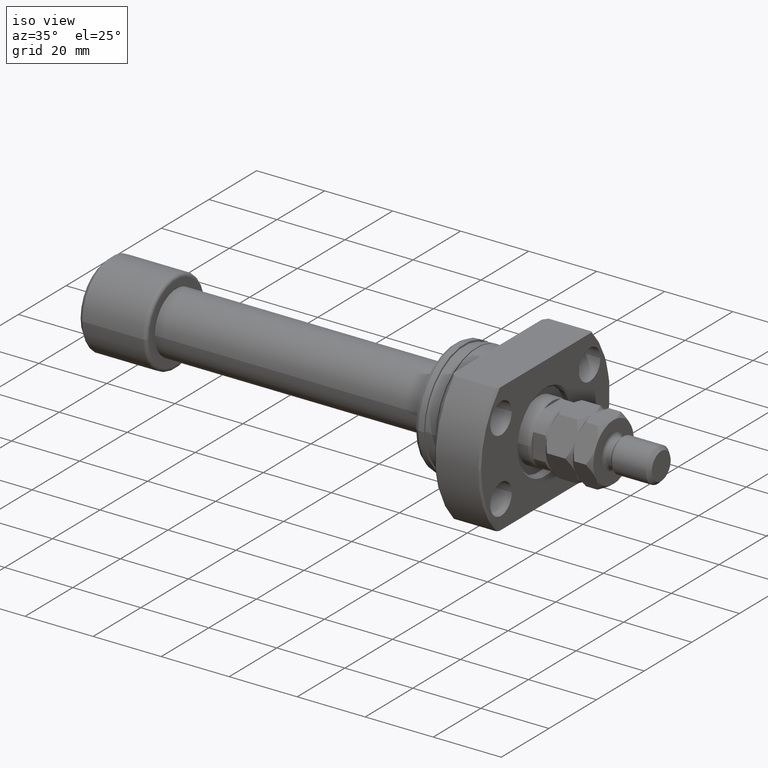
[diagram: clean part render]
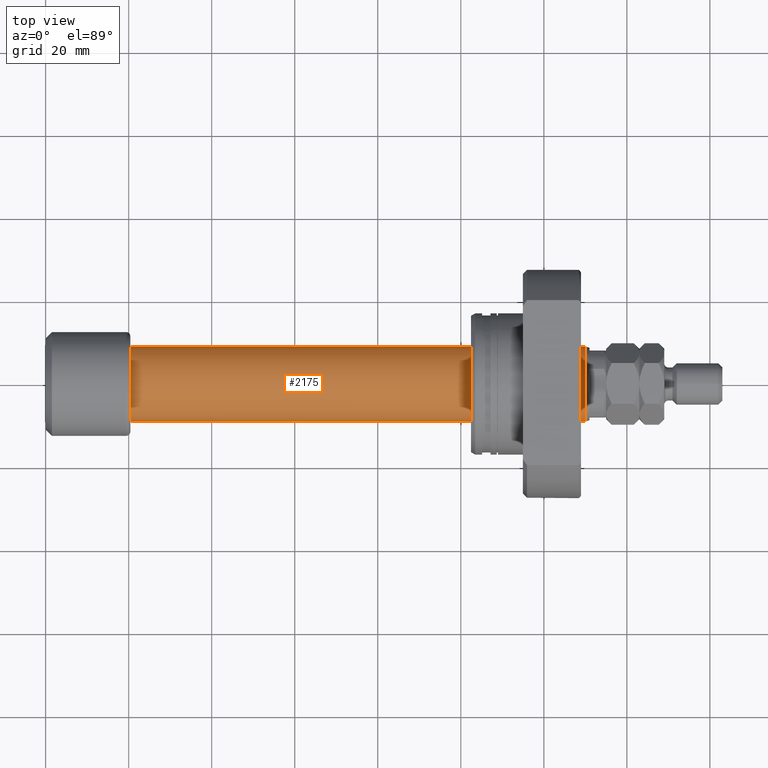
[diagram: tour spotlight — one face highlighted and labeled with its STEP entity id]
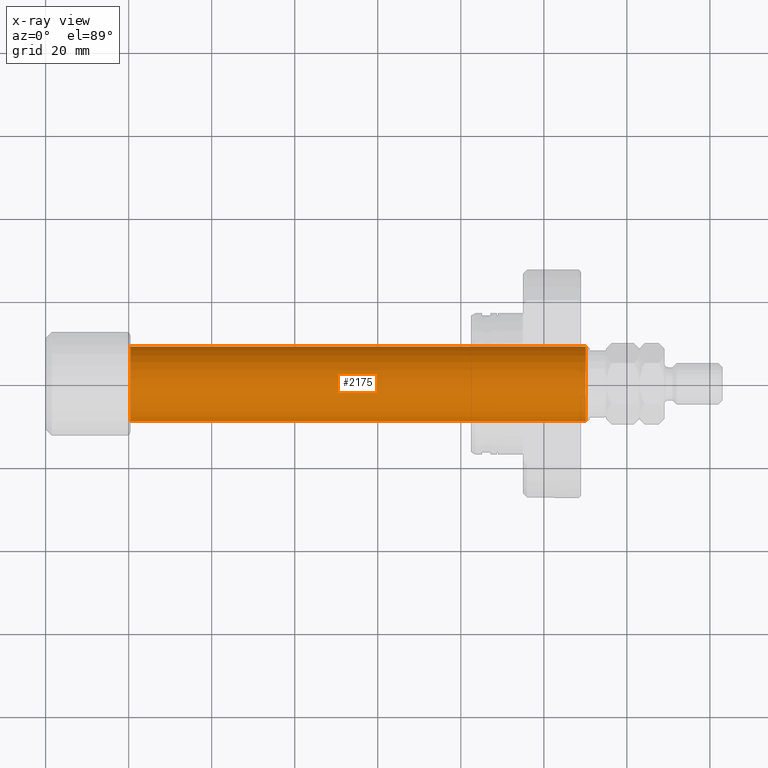
[diagram: x-ray of the same camera — body ghosted, this tour face saturated]
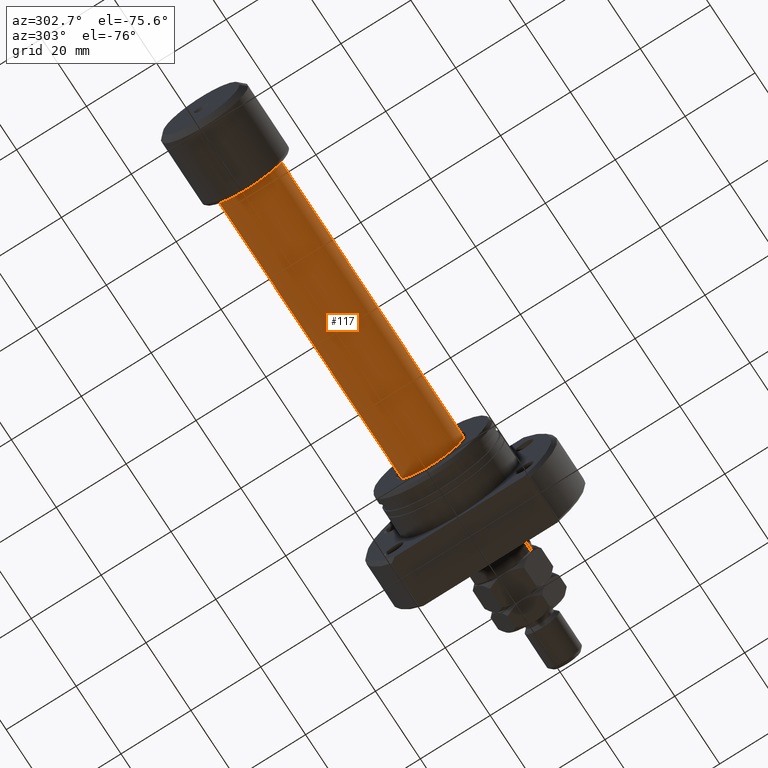
[diagram: tour spotlight — one face highlighted and labeled with its STEP entity id]
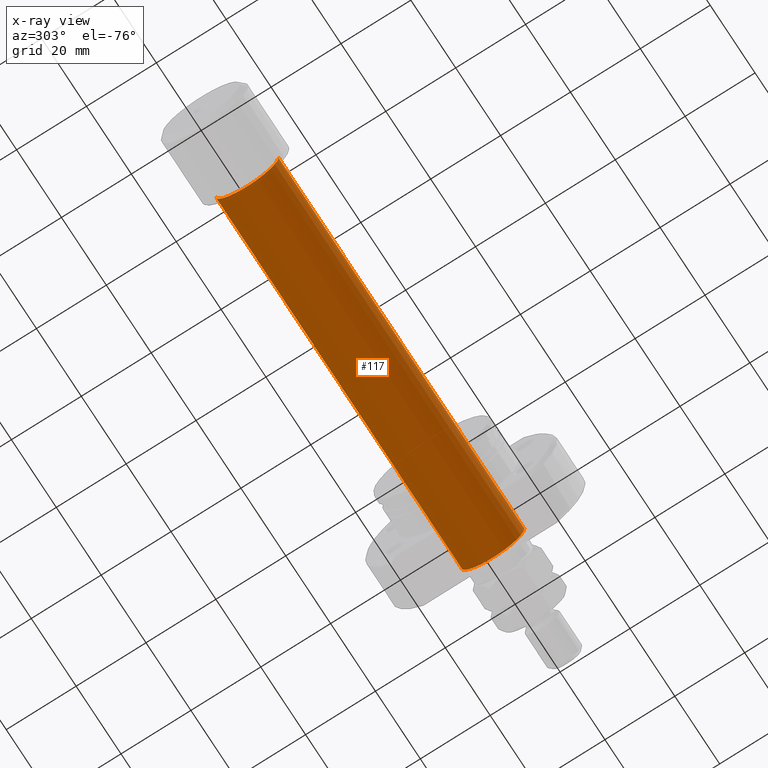
[diagram: x-ray of the same camera — body ghosted, this tour face saturated]
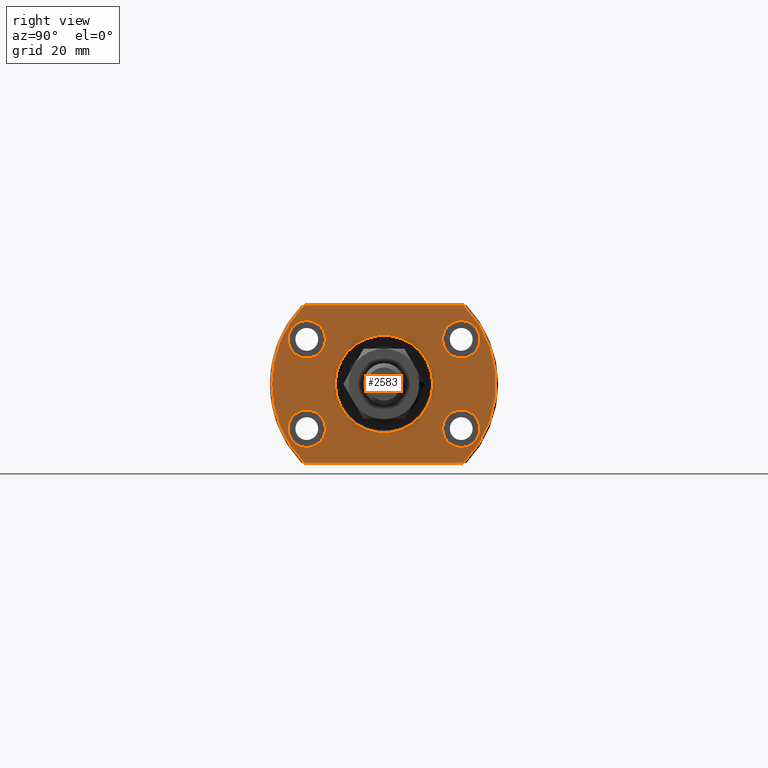
[diagram: tour spotlight — one face highlighted and labeled with its STEP entity id]
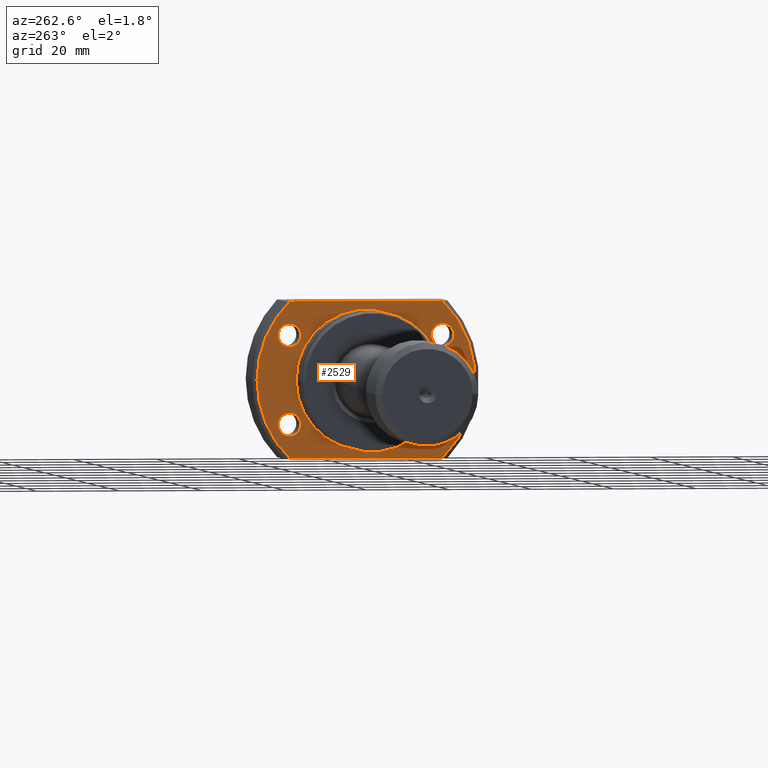
[diagram: tour spotlight — one face highlighted and labeled with its STEP entity id]
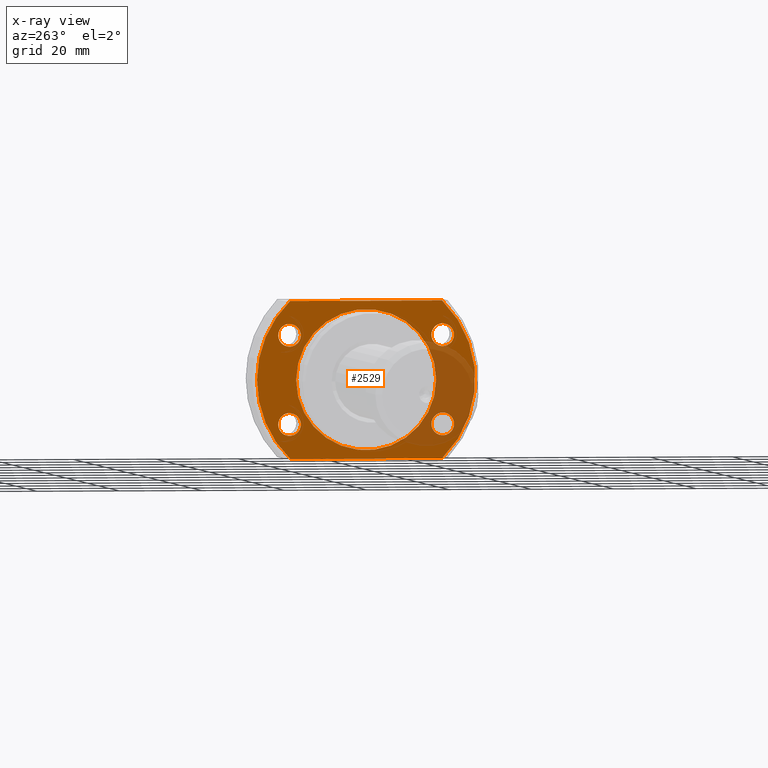
[diagram: x-ray of the same camera — body ghosted, this tour face saturated]
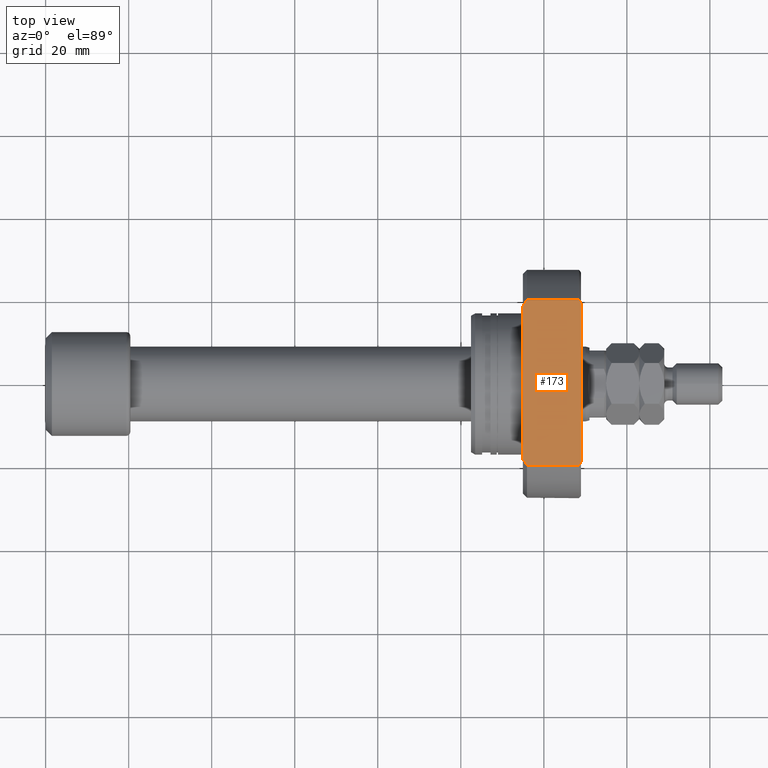
[diagram: tour spotlight — one face highlighted and labeled with its STEP entity id]
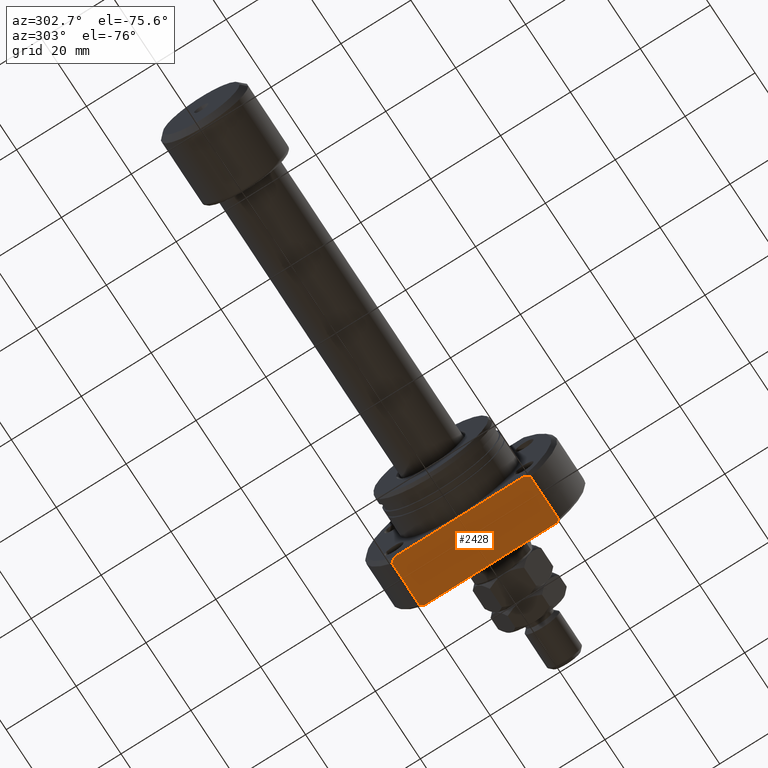
[diagram: tour spotlight — one face highlighted and labeled with its STEP entity id]
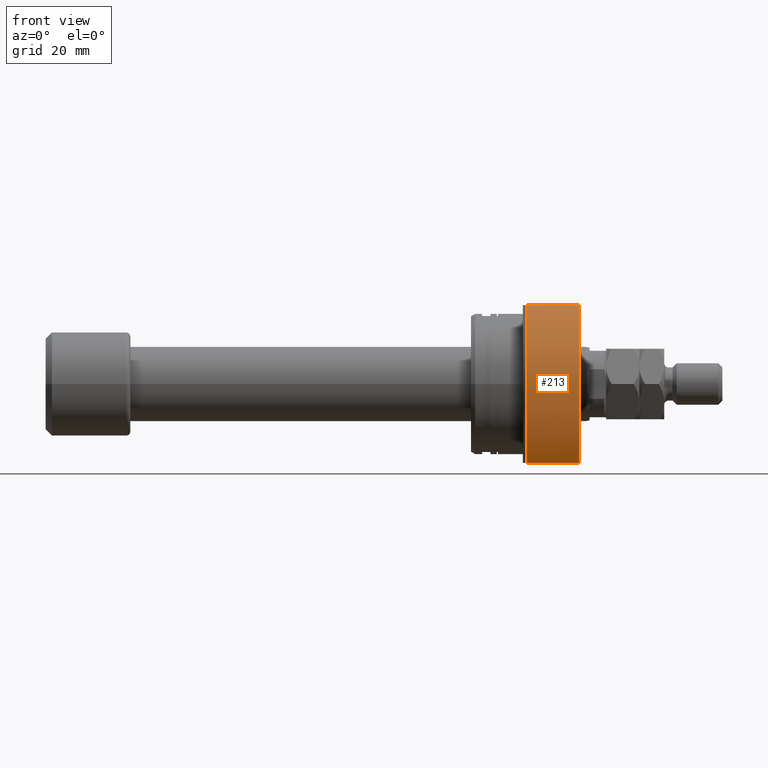
[diagram: tour spotlight — one face highlighted and labeled with its STEP entity id]
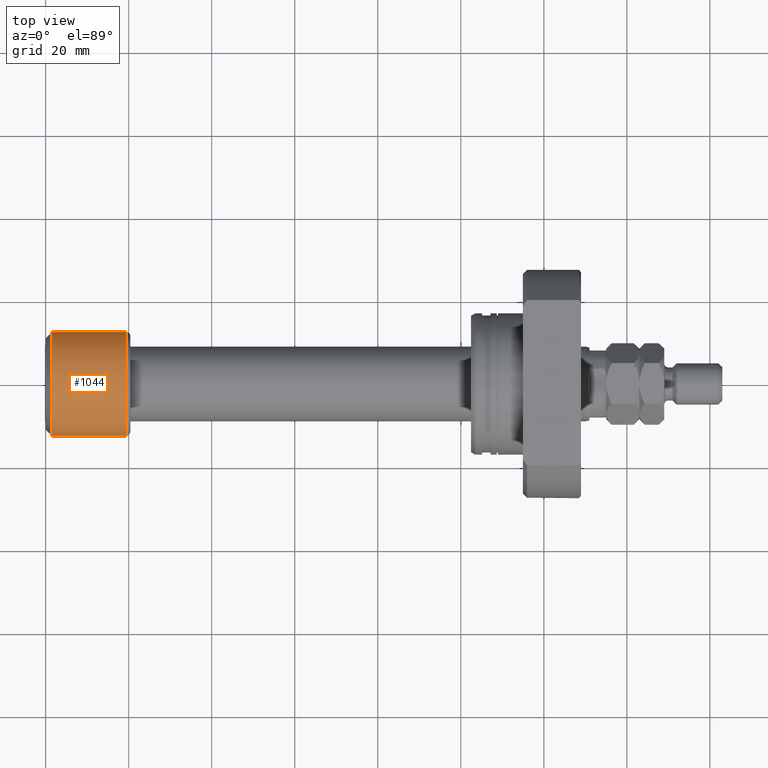
[diagram: tour spotlight — one face highlighted and labeled with its STEP entity id]
A machine part: a face-by-face anatomy tour. The part has 152 B-rep faces; the first image is the clean iso view, then the 8 largest visible faces are spotlighted one at a time (largest first), each with its STEP entity span.

Face 1 — top view, entity #2175. An x-ray twin of the same camera follows (body ghosted, this face saturated) — the face is partly hidden behind the body. In plain terms, the highlighted cylindrical surface (partial cylindrical patch) has radius 9 mm, axis along (-1, -0, -0).
Definition (entity closure, byte-faithful):
#645 = EDGE_CURVE ( 'NONE', #3426, #4650, #1512, .T. ) ;
#677 = CARTESIAN_POINT ( 'NONE',  ( 9.625880898621698056E-17, -9.000000000000097700, 0.000000000000000000 ) ) ;
#731 = DIRECTION ( 'NONE',  ( -1.000000000000000000, -1.069542322069065801E-17, -0.000000000000000000 ) ) ;
#808 = AXIS2_PLACEMENT_3D ( 'NONE', #2009, #1643, #1765 ) ;
#870 = DIRECTION ( 'NONE',  ( -1.000000000000000000, -1.069542322069065801E-17, -0.000000000000000000 ) ) ;
#1193 = CARTESIAN_POINT ( 'NONE',  ( 20.39999999999999503, 9.000000000000000000, 1.102182119232623630E-15 ) ) ;
#1317 = CYLINDRICAL_SURFACE ( 'NONE', #808, 9.000000000000097700 ) ;
#1337 = EDGE_CURVE ( 'NONE', #4231, #1478, #2633, .T. ) ;
#1478 = VERTEX_POINT ( 'NONE', #1193 ) ;
#1512 = LINE ( 'NONE', #677, #3959 ) ;
#1643 = DIRECTION ( 'NONE',  ( -1.000000000000000000, -1.069542322069065801E-17, -0.000000000000000000 ) ) ;
#1667 = CARTESIAN_POINT ( 'NONE',  ( 130.0667575123237611, -9.000000000000193623, 0.000000000000000000 ) ) ;
#1765 = DIRECTION ( 'NONE',  ( 1.069542322069065955E-17, -1.000000000000000000, 0.000000000000000000 ) ) ;
#1778 = DIRECTION ( 'NONE',  ( 0.000000000000000000, -1.000000000000000000, 0.000000000000000000 ) ) ;
#1839 = CIRCLE ( 'NONE', #2765, 9.000000000000000000 ) ;
#2001 = CARTESIAN_POINT ( 'NONE',  ( 130.0667575123237611, 9.000000000000195399, 1.102182119232641774E-15 ) ) ;
#2009 = CARTESIAN_POINT ( 'NONE',  ( 0.000000000000000000, 0.000000000000000000, 0.000000000000000000 ) ) ;
#2149 = CIRCLE ( 'NONE', #2309, 9.000000000000195399 ) ;
#2175 = ADVANCED_FACE ( 'NONE', ( #3825 ), #1317, .T. ) ;
#2263 = ORIENTED_EDGE ( 'NONE', *, *, #3060, .T. ) ;
#2287 = VECTOR ( 'NONE', #2584, 1000.000000000000000 ) ;
#2309 = AXIS2_PLACEMENT_3D ( 'NONE', #3595, #731, #1778 ) ;
#2584 = DIRECTION ( 'NONE',  ( -1.000000000000000000, -1.069542322069065801E-17, -0.000000000000000000 ) ) ;
#2633 = LINE ( 'NONE', #3696, #2287 ) ;
#2765 = AXIS2_PLACEMENT_3D ( 'NONE', #4272, #870, #2810 ) ;
#2810 = DIRECTION ( 'NONE',  ( 0.000000000000000000, -1.000000000000000000, 0.000000000000000000 ) ) ;
#3060 = EDGE_CURVE ( 'NONE', #3426, #4231, #2149, .T. ) ;
#3267 = DIRECTION ( 'NONE',  ( -1.000000000000000000, -1.069542322069065801E-17, -0.000000000000000000 ) ) ;
#3417 = ORIENTED_EDGE ( 'NONE', *, *, #645, .F. ) ;
#3426 = VERTEX_POINT ( 'NONE', #1667 ) ;
#3512 = EDGE_LOOP ( 'NONE', ( #2263, #3747, #4020, #3417 ) ) ;
#3565 = CARTESIAN_POINT ( 'NONE',  ( 20.39999999999999503, -9.000000000000000000, 0.000000000000000000 ) ) ;
#3595 = CARTESIAN_POINT ( 'NONE',  ( 130.0667575123237611, 1.391119018537248741E-15, 0.000000000000000000 ) ) ;
#3696 = CARTESIAN_POINT ( 'NONE',  ( -9.625880898621698056E-17, 9.000000000000097700, 1.102182119232629941E-15 ) ) ;
#3747 = ORIENTED_EDGE ( 'NONE', *, *, #1337, .T. ) ;
#3825 = FACE_OUTER_BOUND ( 'NONE', #3512, .T. ) ;
#3904 = EDGE_CURVE ( 'NONE', #4650, #1478, #1839, .T. ) ;
#3959 = VECTOR ( 'NONE', #3267, 1000.000000000000000 ) ;
#4020 = ORIENTED_EDGE ( 'NONE', *, *, #3904, .F. ) ;
#4231 = VERTEX_POINT ( 'NONE', #2001 ) ;
#4272 = CARTESIAN_POINT ( 'NONE',  ( 20.39999999999999503, 2.181866337020893623E-16, 0.000000000000000000 ) ) ;
#4650 = VERTEX_POINT ( 'NONE', #3565 ) ;

Face 2 — auxiliary view, entity #117. An x-ray twin of the same camera follows (body ghosted, this face saturated) — the face is partly hidden behind the body. In plain terms, the highlighted cylindrical surface (partial cylindrical patch) has radius 9 mm, axis along (-1, -0, -0).
Definition (entity closure, byte-faithful):
#43 = EDGE_LOOP ( 'NONE', ( #4536, #2196, #1491, #1410 ) ) ;
#110 = DIRECTION ( 'NONE',  ( -1.000000000000000000, -1.069542322069065801E-17, -0.000000000000000000 ) ) ;
#117 = ADVANCED_FACE ( 'NONE', ( #3792 ), #475, .T. ) ;
#410 = DIRECTION ( 'NONE',  ( -1.000000000000000000, -1.069542322069065801E-17, -0.000000000000000000 ) ) ;
#417 = CIRCLE ( 'NONE', #880, 9.000000000000000000 ) ;
#475 = CYLINDRICAL_SURFACE ( 'NONE', #947, 9.000000000000097700 ) ;
#508 = DIRECTION ( 'NONE',  ( 0.000000000000000000, -1.000000000000000000, 0.000000000000000000 ) ) ;
#645 = EDGE_CURVE ( 'NONE', #3426, #4650, #1512, .T. ) ;
#677 = CARTESIAN_POINT ( 'NONE',  ( 9.625880898621698056E-17, -9.000000000000097700, 0.000000000000000000 ) ) ;
#880 = AXIS2_PLACEMENT_3D ( 'NONE', #3735, #410, #508 ) ;
#909 = DIRECTION ( 'NONE',  ( -1.000000000000000000, -1.069542322069065801E-17, -0.000000000000000000 ) ) ;
#947 = AXIS2_PLACEMENT_3D ( 'NONE', #1966, #110, #1606 ) ;
#1193 = CARTESIAN_POINT ( 'NONE',  ( 20.39999999999999503, 9.000000000000000000, 1.102182119232623630E-15 ) ) ;
#1337 = EDGE_CURVE ( 'NONE', #4231, #1478, #2633, .T. ) ;
#1410 = ORIENTED_EDGE ( 'NONE', *, *, #1532, .F. ) ;
#1478 = VERTEX_POINT ( 'NONE', #1193 ) ;
#1491 = ORIENTED_EDGE ( 'NONE', *, *, #645, .T. ) ;
#1512 = LINE ( 'NONE', #677, #3959 ) ;
#1532 = EDGE_CURVE ( 'NONE', #1478, #4650, #417, .T. ) ;
#1606 = DIRECTION ( 'NONE',  ( 1.069542322069065955E-17, -1.000000000000000000, 0.000000000000000000 ) ) ;
#1667 = CARTESIAN_POINT ( 'NONE',  ( 130.0667575123237611, -9.000000000000193623, 0.000000000000000000 ) ) ;
#1703 = CARTESIAN_POINT ( 'NONE',  ( 130.0667575123237611, 1.391119018537248741E-15, 0.000000000000000000 ) ) ;
#1966 = CARTESIAN_POINT ( 'NONE',  ( 0.000000000000000000, 0.000000000000000000, 0.000000000000000000 ) ) ;
#2001 = CARTESIAN_POINT ( 'NONE',  ( 130.0667575123237611, 9.000000000000195399, 1.102182119232641774E-15 ) ) ;
#2196 = ORIENTED_EDGE ( 'NONE', *, *, #2880, .T. ) ;
#2287 = VECTOR ( 'NONE', #2584, 1000.000000000000000 ) ;
#2584 = DIRECTION ( 'NONE',  ( -1.000000000000000000, -1.069542322069065801E-17, -0.000000000000000000 ) ) ;
#2633 = LINE ( 'NONE', #3696, #2287 ) ;
#2880 = EDGE_CURVE ( 'NONE', #4231, #3426, #3523, .T. ) ;
#3267 = DIRECTION ( 'NONE',  ( -1.000000000000000000, -1.069542322069065801E-17, -0.000000000000000000 ) ) ;
#3426 = VERTEX_POINT ( 'NONE', #1667 ) ;
#3523 = CIRCLE ( 'NONE', #4203, 9.000000000000195399 ) ;
#3565 = CARTESIAN_POINT ( 'NONE',  ( 20.39999999999999503, -9.000000000000000000, 0.000000000000000000 ) ) ;
#3696 = CARTESIAN_POINT ( 'NONE',  ( -9.625880898621698056E-17, 9.000000000000097700, 1.102182119232629941E-15 ) ) ;
#3735 = CARTESIAN_POINT ( 'NONE',  ( 20.39999999999999503, 2.181866337020893623E-16, 0.000000000000000000 ) ) ;
#3792 = FACE_OUTER_BOUND ( 'NONE', #43, .T. ) ;
#3949 = DIRECTION ( 'NONE',  ( 0.000000000000000000, -1.000000000000000000, 0.000000000000000000 ) ) ;
#3959 = VECTOR ( 'NONE', #3267, 1000.000000000000000 ) ;
#4203 = AXIS2_PLACEMENT_3D ( 'NONE', #1703, #909, #3949 ) ;
#4231 = VERTEX_POINT ( 'NONE', #2001 ) ;
#4536 = ORIENTED_EDGE ( 'NONE', *, *, #1337, .F. ) ;
#4650 = VERTEX_POINT ( 'NONE', #3565 ) ;

Face 3 — right view, entity #2583. In plain terms, the highlighted planar face has unit normal (-1, -0, 0).
Definition (entity closure, byte-faithful):
#34 = AXIS2_PLACEMENT_3D ( 'NONE', #1515, #2974, #2266 ) ;
#38 = AXIS2_PLACEMENT_3D ( 'NONE', #2548, #3319, #2188 ) ;
#78 = VERTEX_POINT ( 'NONE', #1631 ) ;
#103 = VERTEX_POINT ( 'NONE', #2283 ) ;
#125 = EDGE_CURVE ( 'NONE', #1320, #1777, #3424, .T. ) ;
#126 = CIRCLE ( 'NONE', #2000, 4.500000000000000888 ) ;
#212 = DIRECTION ( 'NONE',  ( -1.000000000000000000, -9.242617352055502386E-18, 0.000000000000000000 ) ) ;
#266 = CIRCLE ( 'NONE', #38, 4.500000000000000888 ) ;
#353 = AXIS2_PLACEMENT_3D ( 'NONE', #4323, #212, #1308 ) ;
#360 = CARTESIAN_POINT ( 'NONE',  ( 26.49999999999933564, -23.10000000000076881, -10.75000000000000000 ) ) ;
#379 = EDGE_CURVE ( 'NONE', #622, #858, #4346, .T. ) ;
#414 = EDGE_LOOP ( 'NONE', ( #2303, #4556 ) ) ;
#428 = CARTESIAN_POINT ( 'NONE',  ( 26.50000000000000355, -11.75000000000071054, 1.438959988998140752E-15 ) ) ;
#523 = CARTESIAN_POINT ( 'NONE',  ( 26.50000000000000355, 2.449293598294708386E-16, 0.000000000000000000 ) ) ;
#622 = VERTEX_POINT ( 'NONE', #360 ) ;
#661 = ORIENTED_EDGE ( 'NONE', *, *, #1555, .F. ) ;
#669 = DIRECTION ( 'NONE',  ( 1.000000000000000000, -2.886466111666351885E-14, 0.000000000000000000 ) ) ;
#672 = FACE_BOUND ( 'NONE', #1497, .T. ) ;
#709 = CARTESIAN_POINT ( 'NONE',  ( 26.50000000000000355, 2.449293598294708386E-16, 0.000000000000000000 ) ) ;
#720 = VECTOR ( 'NONE', #3818, 1000.000000000000000 ) ;
#737 = AXIS2_PLACEMENT_3D ( 'NONE', #709, #4365, #1895 ) ;
#764 = DIRECTION ( 'NONE',  ( 1.000000000000000000, -2.883293662278287419E-14, -3.155443620884046521E-30 ) ) ;
#779 = DIRECTION ( 'NONE',  ( 2.852656382717415620E-14, 1.000000000000000000, 0.000000000000000000 ) ) ;
#782 = DIRECTION ( 'NONE',  ( 0.000000000000000000, -1.000000000000000000, 0.000000000000000000 ) ) ;
#820 = CIRCLE ( 'NONE', #898, 4.500000000000000888 ) ;
#858 = VERTEX_POINT ( 'NONE', #4721 ) ;
#895 = CARTESIAN_POINT ( 'NONE',  ( 26.50000000000000355, 19.18332609325086580, -19.00000000000001066 ) ) ;
#898 = AXIS2_PLACEMENT_3D ( 'NONE', #1401, #4409, #4355 ) ;
#981 = DIRECTION ( 'NONE',  ( 0.000000000000000000, 1.000000000000000000, 0.000000000000000000 ) ) ;
#1045 = CIRCLE ( 'NONE', #34, 27.00000000000000000 ) ;
#1055 = CARTESIAN_POINT ( 'NONE',  ( 26.50000000000054001, 18.59999999999923403, 10.75000000000000000 ) ) ;
#1129 = CIRCLE ( 'NONE', #4289, 11.74999999999932498 ) ;
#1187 = DIRECTION ( 'NONE',  ( 2.852656382717415620E-14, 1.000000000000000000, 0.000000000000000000 ) ) ;
#1224 = ORIENTED_EDGE ( 'NONE', *, *, #2499, .T. ) ;
#1308 = DIRECTION ( 'NONE',  ( 0.000000000000000000, -1.000000000000000000, 0.000000000000000000 ) ) ;
#1320 = VERTEX_POINT ( 'NONE', #2216 ) ;
#1329 = ORIENTED_EDGE ( 'NONE', *, *, #4408, .T. ) ;
#1370 = CIRCLE ( 'NONE', #737, 27.00000000000000000 ) ;
#1390 = DIRECTION ( 'NONE',  ( 2.852656382717415620E-14, 1.000000000000000000, 0.000000000000000000 ) ) ;
#1401 = CARTESIAN_POINT ( 'NONE',  ( 26.49999999999946354, -18.60000000000076881, 10.75000000000000000 ) ) ;
#1416 = FACE_BOUND ( 'NONE', #2578, .T. ) ;
#1465 = FACE_BOUND ( 'NONE', #4331, .T. ) ;
#1485 = EDGE_LOOP ( 'NONE', ( #661, #3393, #4290, #2180, #1329 ) ) ;
#1497 = EDGE_LOOP ( 'NONE', ( #3835, #1224 ) ) ;
#1500 = CARTESIAN_POINT ( 'NONE',  ( 26.49999999999946354, -18.60000000000076881, -10.75000000000000000 ) ) ;
#1515 = CARTESIAN_POINT ( 'NONE',  ( 26.50000000000000355, 2.449293598294708386E-16, 0.000000000000000000 ) ) ;
#1523 = CARTESIAN_POINT ( 'NONE',  ( 26.50000000000000355, 19.18332609325086935, 19.00000000000000711 ) ) ;
#1529 = CARTESIAN_POINT ( 'NONE',  ( 26.49999999999946354, -18.60000000000076881, -10.75000000000000000 ) ) ;
#1555 = EDGE_CURVE ( 'NONE', #4595, #3744, #2718, .T. ) ;
#1603 = AXIS2_PLACEMENT_3D ( 'NONE', #3754, #2337, #1187 ) ;
#1631 = CARTESIAN_POINT ( 'NONE',  ( 26.50000000000000355, 11.74999999999861622, 0.000000000000000000 ) ) ;
#1695 = LINE ( 'NONE', #4594, #3610 ) ;
#1723 = EDGE_CURVE ( 'NONE', #2639, #2570, #3432, .T. ) ;
#1777 = VERTEX_POINT ( 'NONE', #2489 ) ;
#1799 = VERTEX_POINT ( 'NONE', #2511 ) ;
#1819 = AXIS2_PLACEMENT_3D ( 'NONE', #2714, #3527, #1390 ) ;
#1838 = DIRECTION ( 'NONE',  ( 2.852656382717415620E-14, 1.000000000000000000, 0.000000000000000000 ) ) ;
#1870 = ORIENTED_EDGE ( 'NONE', *, *, #3493, .F. ) ;
#1895 = DIRECTION ( 'NONE',  ( 0.000000000000000000, 1.000000000000000000, 0.000000000000000000 ) ) ;
#2000 = AXIS2_PLACEMENT_3D ( 'NONE', #1055, #669, #3239 ) ;
#2015 = DIRECTION ( 'NONE',  ( 1.000000000000000000, 9.242617352055502386E-18, -0.000000000000000000 ) ) ;
#2064 = CIRCLE ( 'NONE', #353, 11.74999999999932498 ) ;
#2180 = ORIENTED_EDGE ( 'NONE', *, *, #3425, .T. ) ;
#2188 = DIRECTION ( 'NONE',  ( 2.852656382717415620E-14, 1.000000000000000000, 0.000000000000000000 ) ) ;
#2205 = CARTESIAN_POINT ( 'NONE',  ( 26.50000000000041211, 14.09999999999923403, 10.75000000000000000 ) ) ;
#2216 = CARTESIAN_POINT ( 'NONE',  ( 26.50000000000066791, 23.09999999999923403, -10.75000000000000000 ) ) ;
#2230 = EDGE_CURVE ( 'NONE', #4595, #2639, #1045, .T. ) ;
#2266 = DIRECTION ( 'NONE',  ( 0.000000000000000000, 1.000000000000000000, 0.000000000000000000 ) ) ;
#2277 = DIRECTION ( 'NONE',  ( 1.000000000000000000, -2.883293662278287419E-14, -3.155443620884046521E-30 ) ) ;
#2283 = CARTESIAN_POINT ( 'NONE',  ( 26.49999999999959499, -14.10000000000076881, 10.75000000000000000 ) ) ;
#2303 = ORIENTED_EDGE ( 'NONE', *, *, #3249, .F. ) ;
#2307 = AXIS2_PLACEMENT_3D ( 'NONE', #2620, #764, #4422 ) ;
#2326 = EDGE_CURVE ( 'NONE', #1799, #4357, #3444, .T. ) ;
#2337 = DIRECTION ( 'NONE',  ( 1.000000000000000000, -2.886466111666351885E-14, 0.000000000000000000 ) ) ;
#2360 = CARTESIAN_POINT ( 'NONE',  ( 26.50000000000000355, 19.88089535207168623, 19.00000000000001066 ) ) ;
#2375 = CIRCLE ( 'NONE', #2307, 4.500000000000000888 ) ;
#2489 = CARTESIAN_POINT ( 'NONE',  ( 26.50000000000041211, 14.09999999999923403, -10.75000000000000000 ) ) ;
#2499 = EDGE_CURVE ( 'NONE', #2873, #78, #2064, .T. ) ;
#2511 = CARTESIAN_POINT ( 'NONE',  ( 26.50000000000066791, 23.09999999999923403, 10.75000000000000000 ) ) ;
#2548 = CARTESIAN_POINT ( 'NONE',  ( 26.50000000000054001, 18.59999999999923403, -10.75000000000000000 ) ) ;
#2569 = CARTESIAN_POINT ( 'NONE',  ( 26.50000000000000355, -27.00000000000000355, 0.000000000000000000 ) ) ;
#2570 = VERTEX_POINT ( 'NONE', #4707 ) ;
#2578 = EDGE_LOOP ( 'NONE', ( #4170, #1870 ) ) ;
#2583 = ADVANCED_FACE ( 'NONE', ( #672, #1465, #1416, #3292, #3630, #4030 ), #3725, .F. ) ;
#2589 = EDGE_CURVE ( 'NONE', #1777, #1320, #266, .T. ) ;
#2614 = EDGE_CURVE ( 'NONE', #103, #2830, #2375, .T. ) ;
#2620 = CARTESIAN_POINT ( 'NONE',  ( 26.49999999999946354, -18.60000000000076881, 10.75000000000000000 ) ) ;
#2639 = VERTEX_POINT ( 'NONE', #2569 ) ;
#2654 = CARTESIAN_POINT ( 'NONE',  ( 26.50000000000000355, -19.18332609325086224, 19.00000000000000711 ) ) ;
#2714 = CARTESIAN_POINT ( 'NONE',  ( 26.50000000000054001, 18.59999999999923403, -10.75000000000000000 ) ) ;
#2718 = LINE ( 'NONE', #2360, #720 ) ;
#2830 = VERTEX_POINT ( 'NONE', #3092 ) ;
#2868 = EDGE_CURVE ( 'NONE', #78, #2873, #1129, .T. ) ;
#2873 = VERTEX_POINT ( 'NONE', #428 ) ;
#2932 = CARTESIAN_POINT ( 'NONE',  ( 26.50000000000000355, -27.00000000000000000, 0.000000000000000000 ) ) ;
#2974 = DIRECTION ( 'NONE',  ( 1.000000000000000000, 9.242617352055502386E-18, -0.000000000000000000 ) ) ;
#3092 = CARTESIAN_POINT ( 'NONE',  ( 26.49999999999933564, -23.10000000000076881, 10.75000000000000000 ) ) ;
#3106 = DIRECTION ( 'NONE',  ( -9.242617352055502386E-18, 1.000000000000000000, -0.000000000000000000 ) ) ;
#3109 = EDGE_CURVE ( 'NONE', #4357, #1799, #126, .T. ) ;
#3238 = ORIENTED_EDGE ( 'NONE', *, *, #2589, .F. ) ;
#3239 = DIRECTION ( 'NONE',  ( 2.852656382717415620E-14, 1.000000000000000000, 0.000000000000000000 ) ) ;
#3240 = ORIENTED_EDGE ( 'NONE', *, *, #3109, .F. ) ;
#3249 = EDGE_CURVE ( 'NONE', #858, #622, #3302, .T. ) ;
#3292 = FACE_BOUND ( 'NONE', #414, .T. ) ;
#3302 = CIRCLE ( 'NONE', #3376, 4.500000000000000888 ) ;
#3319 = DIRECTION ( 'NONE',  ( 1.000000000000000000, -2.883293662278287419E-14, -3.155443620884046521E-30 ) ) ;
#3376 = AXIS2_PLACEMENT_3D ( 'NONE', #1529, #2277, #779 ) ;
#3388 = CARTESIAN_POINT ( 'NONE',  ( 26.50000000000000355, -7.069515144664183387E-13, 0.000000000000000000 ) ) ;
#3393 = ORIENTED_EDGE ( 'NONE', *, *, #2230, .T. ) ;
#3424 = CIRCLE ( 'NONE', #1819, 4.500000000000000888 ) ;
#3425 = EDGE_CURVE ( 'NONE', #2570, #3858, #1695, .T. ) ;
#3432 = CIRCLE ( 'NONE', #4122, 27.00000000000000000 ) ;
#3444 = CIRCLE ( 'NONE', #1603, 4.500000000000000888 ) ;
#3493 = EDGE_CURVE ( 'NONE', #2830, #103, #820, .T. ) ;
#3527 = DIRECTION ( 'NONE',  ( 1.000000000000000000, -2.883293662278287419E-14, -3.155443620884046521E-30 ) ) ;
#3594 = EDGE_LOOP ( 'NONE', ( #4217, #3238 ) ) ;
#3610 = VECTOR ( 'NONE', #3106, 1000.000000000000000 ) ;
#3630 = FACE_BOUND ( 'NONE', #3594, .T. ) ;
#3725 = PLANE ( 'NONE',  #4587 ) ;
#3744 = VERTEX_POINT ( 'NONE', #1523 ) ;
#3754 = CARTESIAN_POINT ( 'NONE',  ( 26.50000000000054001, 18.59999999999923403, 10.75000000000000000 ) ) ;
#3818 = DIRECTION ( 'NONE',  ( -0.000000000000000000, 1.000000000000000000, 0.000000000000000000 ) ) ;
#3835 = ORIENTED_EDGE ( 'NONE', *, *, #2868, .T. ) ;
#3842 = ORIENTED_EDGE ( 'NONE', *, *, #2326, .F. ) ;
#3858 = VERTEX_POINT ( 'NONE', #895 ) ;
#4030 = FACE_OUTER_BOUND ( 'NONE', #1485, .T. ) ;
#4097 = DIRECTION ( 'NONE',  ( -1.000000000000000000, -9.242617352055502386E-18, 0.000000000000000000 ) ) ;
#4122 = AXIS2_PLACEMENT_3D ( 'NONE', #523, #2015, #981 ) ;
#4170 = ORIENTED_EDGE ( 'NONE', *, *, #2614, .F. ) ;
#4217 = ORIENTED_EDGE ( 'NONE', *, *, #125, .F. ) ;
#4289 = AXIS2_PLACEMENT_3D ( 'NONE', #3388, #4097, #782 ) ;
#4290 = ORIENTED_EDGE ( 'NONE', *, *, #1723, .T. ) ;
#4323 = CARTESIAN_POINT ( 'NONE',  ( 26.50000000000000355, -7.069515144664183387E-13, 0.000000000000000000 ) ) ;
#4331 = EDGE_LOOP ( 'NONE', ( #3842, #3240 ) ) ;
#4346 = CIRCLE ( 'NONE', #4647, 4.500000000000000888 ) ;
#4355 = DIRECTION ( 'NONE',  ( 2.852656382717415620E-14, 1.000000000000000000, 0.000000000000000000 ) ) ;
#4357 = VERTEX_POINT ( 'NONE', #2205 ) ;
#4365 = DIRECTION ( 'NONE',  ( 1.000000000000000000, 9.242617352055502386E-18, -0.000000000000000000 ) ) ;
#4396 = DIRECTION ( 'NONE',  ( -1.000000000000000000, -9.242617352055502386E-18, 0.000000000000000000 ) ) ;
#4408 = EDGE_CURVE ( 'NONE', #3858, #3744, #1370, .T. ) ;
#4409 = DIRECTION ( 'NONE',  ( 1.000000000000000000, -2.883293662278287419E-14, -3.155443620884046521E-30 ) ) ;
#4422 = DIRECTION ( 'NONE',  ( 2.852656382717415620E-14, 1.000000000000000000, 0.000000000000000000 ) ) ;
#4500 = DIRECTION ( 'NONE',  ( 1.000000000000000000, -2.883293662278287419E-14, -3.155443620884046521E-30 ) ) ;
#4556 = ORIENTED_EDGE ( 'NONE', *, *, #379, .F. ) ;
#4587 = AXIS2_PLACEMENT_3D ( 'NONE', #2932, #4396, #4729 ) ;
#4594 = CARTESIAN_POINT ( 'NONE',  ( 26.50000000000000355, -27.00000000000000000, -19.00000000000001066 ) ) ;
#4595 = VERTEX_POINT ( 'NONE', #2654 ) ;
#4647 = AXIS2_PLACEMENT_3D ( 'NONE', #1500, #4500, #1838 ) ;
#4707 = CARTESIAN_POINT ( 'NONE',  ( 26.50000000000000355, -19.18332609325086580, -19.00000000000001066 ) ) ;
#4721 = CARTESIAN_POINT ( 'NONE',  ( 26.49999999999959499, -14.10000000000076881, -10.75000000000000000 ) ) ;
#4729 = DIRECTION ( 'NONE',  ( 9.242617352055502386E-18, -1.000000000000000000, 0.000000000000000000 ) ) ;

Face 4 — auxiliary view, entity #2529. An x-ray twin of the same camera follows (body ghosted, this face saturated) — the face is partly hidden behind the body. In plain terms, the highlighted planar face has unit normal (1, 0, 0).
Definition (entity closure, byte-faithful):
#32 = CIRCLE ( 'NONE', #1362, 2.749999999999999112 ) ;
#47 = CIRCLE ( 'NONE', #1059, 26.49999999999993250 ) ;
#130 = CARTESIAN_POINT ( 'NONE',  ( 12.50000000000000355, -16.99999999999999645, 19.00000000000001066 ) ) ;
#156 = CARTESIAN_POINT ( 'NONE',  ( 12.50000000000000355, -18.60000000000036380, 10.75000000000000000 ) ) ;
#179 = ORIENTED_EDGE ( 'NONE', *, *, #4730, .T. ) ;
#181 = FACE_OUTER_BOUND ( 'NONE', #1364, .T. ) ;
#232 = CARTESIAN_POINT ( 'NONE',  ( 12.50000000000000355, -16.99999999999999645, 0.000000000000000000 ) ) ;
#275 = CARTESIAN_POINT ( 'NONE',  ( 12.50000000000000355, -18.60000000000036380, -10.75000000000000000 ) ) ;
#364 = CIRCLE ( 'NONE', #2987, 16.99999999999999645 ) ;
#402 = EDGE_LOOP ( 'NONE', ( #179, #1632 ) ) ;
#409 = CIRCLE ( 'NONE', #1031, 2.749999999999999112 ) ;
#450 = CARTESIAN_POINT ( 'NONE',  ( 12.50000000000000355, 18.47295320191106072, 19.00000000000001066 ) ) ;
#471 = DIRECTION ( 'NONE',  ( 1.000000000000000000, 9.242617352055502386E-18, -0.000000000000000000 ) ) ;
#473 = CARTESIAN_POINT ( 'NONE',  ( 12.50000000000000355, 15.84999999999964260, 10.75000000000000000 ) ) ;
#488 = ORIENTED_EDGE ( 'NONE', *, *, #3553, .F. ) ;
#525 = DIRECTION ( 'NONE',  ( 0.000000000000000000, 1.000000000000000000, 0.000000000000000000 ) ) ;
#535 = VERTEX_POINT ( 'NONE', #1733 ) ;
#541 = DIRECTION ( 'NONE',  ( 0.000000000000000000, 1.000000000000000000, 0.000000000000000000 ) ) ;
#573 = AXIS2_PLACEMENT_3D ( 'NONE', #3494, #2034, #1273 ) ;
#575 = FACE_BOUND ( 'NONE', #972, .T. ) ;
#615 = EDGE_CURVE ( 'NONE', #2754, #4052, #3192, .T. ) ;
#675 = VERTEX_POINT ( 'NONE', #2909 ) ;
#729 = ORIENTED_EDGE ( 'NONE', *, *, #3218, .T. ) ;
#836 = EDGE_CURVE ( 'NONE', #1674, #675, #409, .T. ) ;
#972 = EDGE_LOOP ( 'NONE', ( #3135, #3164 ) ) ;
#979 = AXIS2_PLACEMENT_3D ( 'NONE', #3107, #2775, #541 ) ;
#1031 = AXIS2_PLACEMENT_3D ( 'NONE', #4002, #1379, #1771 ) ;
#1059 = AXIS2_PLACEMENT_3D ( 'NONE', #4433, #2650, #1121 ) ;
#1109 = EDGE_LOOP ( 'NONE', ( #2217, #729 ) ) ;
#1111 = ORIENTED_EDGE ( 'NONE', *, *, #3704, .F. ) ;
#1121 = DIRECTION ( 'NONE',  ( 0.000000000000000000, 1.000000000000000000, 0.000000000000000000 ) ) ;
#1157 = LINE ( 'NONE', #130, #3221 ) ;
#1204 = CARTESIAN_POINT ( 'NONE',  ( 12.50000000000000355, -18.47295320191106072, -19.00000000000001066 ) ) ;
#1205 = ORIENTED_EDGE ( 'NONE', *, *, #1700, .F. ) ;
#1273 = DIRECTION ( 'NONE',  ( 0.000000000000000000, 1.000000000000000000, 0.000000000000000000 ) ) ;
#1332 = FACE_BOUND ( 'NONE', #1109, .T. ) ;
#1362 = AXIS2_PLACEMENT_3D ( 'NONE', #275, #2871, #4335 ) ;
#1364 = EDGE_LOOP ( 'NONE', ( #4322, #488, #1205, #1857, #1111 ) ) ;
#1379 = DIRECTION ( 'NONE',  ( 1.000000000000000000, 9.242617352055502386E-18, -0.000000000000000000 ) ) ;
#1400 = CARTESIAN_POINT ( 'NONE',  ( 12.50000000000000178, -16.99999999999999645, 2.081899558550499885E-15 ) ) ;
#1454 = AXIS2_PLACEMENT_3D ( 'NONE', #156, #1653, #3167 ) ;
#1535 = CARTESIAN_POINT ( 'NONE',  ( 12.50000000000000355, 18.59999999999964260, 10.75000000000000000 ) ) ;
#1538 = AXIS2_PLACEMENT_3D ( 'NONE', #4771, #2484, #4694 ) ;
#1554 = CARTESIAN_POINT ( 'NONE',  ( 12.50000000000000355, -21.35000000000036025, 10.75000000000000000 ) ) ;
#1632 = ORIENTED_EDGE ( 'NONE', *, *, #2911, .T. ) ;
#1644 = ORIENTED_EDGE ( 'NONE', *, *, #2733, .T. ) ;
#1653 = DIRECTION ( 'NONE',  ( 1.000000000000000000, 9.242617352055502386E-18, -0.000000000000000000 ) ) ;
#1658 = LINE ( 'NONE', #4633, #1774 ) ;
#1674 = VERTEX_POINT ( 'NONE', #4187 ) ;
#1687 = DIRECTION ( 'NONE',  ( 9.242617352055502386E-18, -1.000000000000000000, 0.000000000000000000 ) ) ;
#1700 = EDGE_CURVE ( 'NONE', #2832, #2869, #4354, .T. ) ;
#1733 = CARTESIAN_POINT ( 'NONE',  ( 12.50000000000000355, -15.85000000000036380, 10.75000000000000000 ) ) ;
#1771 = DIRECTION ( 'NONE',  ( 0.000000000000000000, 1.000000000000000000, 0.000000000000000000 ) ) ;
#1774 = VECTOR ( 'NONE', #1687, 1000.000000000000000 ) ;
#1821 = EDGE_CURVE ( 'NONE', #3242, #3554, #4044, .T. ) ;
#1857 = ORIENTED_EDGE ( 'NONE', *, *, #3790, .T. ) ;
#1879 = EDGE_CURVE ( 'NONE', #675, #1674, #32, .T. ) ;
#1924 = DIRECTION ( 'NONE',  ( 1.000000000000000000, 9.242617352055502386E-18, -0.000000000000000000 ) ) ;
#1941 = DIRECTION ( 'NONE',  ( 1.000000000000000000, 9.242617352055502386E-18, -0.000000000000000000 ) ) ;
#2034 = DIRECTION ( 'NONE',  ( 1.000000000000000000, 9.242617352055502386E-18, -0.000000000000000000 ) ) ;
#2111 = CARTESIAN_POINT ( 'NONE',  ( 12.50000000000000178, 16.99999999999999645, 0.000000000000000000 ) ) ;
#2115 = DIRECTION ( 'NONE',  ( 1.000000000000000000, 9.242617352055502386E-18, -0.000000000000000000 ) ) ;
#2217 = ORIENTED_EDGE ( 'NONE', *, *, #1821, .T. ) ;
#2233 = AXIS2_PLACEMENT_3D ( 'NONE', #4076, #1941, #3035 ) ;
#2238 = VERTEX_POINT ( 'NONE', #1400 ) ;
#2484 = DIRECTION ( 'NONE',  ( 1.000000000000000000, 9.242617352055502386E-18, -0.000000000000000000 ) ) ;
#2526 = CARTESIAN_POINT ( 'NONE',  ( 12.50000000000000355, 21.34999999999963904, 10.75000000000000000 ) ) ;
#2529 = ADVANCED_FACE ( 'NONE', ( #3498, #4614, #3555, #1332, #575, #181 ), #3171, .F. ) ;
#2537 = AXIS2_PLACEMENT_3D ( 'NONE', #3329, #3304, #2940 ) ;
#2623 = ORIENTED_EDGE ( 'NONE', *, *, #615, .T. ) ;
#2636 = DIRECTION ( 'NONE',  ( 9.242617352055502386E-18, -1.000000000000000000, 0.000000000000000000 ) ) ;
#2650 = DIRECTION ( 'NONE',  ( 1.000000000000000000, 9.242617352055502386E-18, -0.000000000000000000 ) ) ;
#2678 = CARTESIAN_POINT ( 'NONE',  ( 12.50000000000000355, 21.34999999999963904, -10.75000000000000000 ) ) ;
#2733 = EDGE_CURVE ( 'NONE', #4052, #2754, #3979, .T. ) ;
#2754 = VERTEX_POINT ( 'NONE', #473 ) ;
#2775 = DIRECTION ( 'NONE',  ( 1.000000000000000000, 9.242617352055502386E-18, -0.000000000000000000 ) ) ;
#2816 = AXIS2_PLACEMENT_3D ( 'NONE', #4413, #3644, #3946 ) ;
#2829 = ORIENTED_EDGE ( 'NONE', *, *, #1879, .T. ) ;
#2832 = VERTEX_POINT ( 'NONE', #4121 ) ;
#2869 = VERTEX_POINT ( 'NONE', #3748 ) ;
#2871 = DIRECTION ( 'NONE',  ( 1.000000000000000000, 9.242617352055502386E-18, -0.000000000000000000 ) ) ;
#2882 = DIRECTION ( 'NONE',  ( 1.000000000000000000, 9.242617352055502386E-18, -0.000000000000000000 ) ) ;
#2890 = CARTESIAN_POINT ( 'NONE',  ( 12.50000000000000355, 15.84999999999964260, -10.75000000000000000 ) ) ;
#2909 = CARTESIAN_POINT ( 'NONE',  ( 12.50000000000000355, -15.85000000000036380, -10.75000000000000000 ) ) ;
#2911 = EDGE_CURVE ( 'NONE', #3231, #535, #3452, .T. ) ;
#2940 = DIRECTION ( 'NONE',  ( 0.000000000000000000, 1.000000000000000000, 0.000000000000000000 ) ) ;
#2945 = VERTEX_POINT ( 'NONE', #2111 ) ;
#2987 = AXIS2_PLACEMENT_3D ( 'NONE', #3788, #471, #3770 ) ;
#3035 = DIRECTION ( 'NONE',  ( 0.000000000000000000, 1.000000000000000000, 0.000000000000000000 ) ) ;
#3072 = CIRCLE ( 'NONE', #2537, 26.49999999999993250 ) ;
#3107 = CARTESIAN_POINT ( 'NONE',  ( 12.50000000000000355, -18.60000000000036380, 10.75000000000000000 ) ) ;
#3135 = ORIENTED_EDGE ( 'NONE', *, *, #4611, .T. ) ;
#3164 = ORIENTED_EDGE ( 'NONE', *, *, #3507, .T. ) ;
#3167 = DIRECTION ( 'NONE',  ( 0.000000000000000000, 1.000000000000000000, 0.000000000000000000 ) ) ;
#3171 = PLANE ( 'NONE',  #3680 ) ;
#3192 = CIRCLE ( 'NONE', #4036, 2.749999999999999112 ) ;
#3209 = VERTEX_POINT ( 'NONE', #1204 ) ;
#3218 = EDGE_CURVE ( 'NONE', #3554, #3242, #3607, .T. ) ;
#3221 = VECTOR ( 'NONE', #2636, 1000.000000000000000 ) ;
#3231 = VERTEX_POINT ( 'NONE', #1554 ) ;
#3242 = VERTEX_POINT ( 'NONE', #2678 ) ;
#3263 = EDGE_CURVE ( 'NONE', #4612, #3448, #1157, .T. ) ;
#3304 = DIRECTION ( 'NONE',  ( 1.000000000000000000, 9.242617352055502386E-18, -0.000000000000000000 ) ) ;
#3321 = DIRECTION ( 'NONE',  ( 0.000000000000000000, 1.000000000000000000, 0.000000000000000000 ) ) ;
#3329 = CARTESIAN_POINT ( 'NONE',  ( 12.50000000000000355, 1.155327169006938207E-16, 0.000000000000000000 ) ) ;
#3448 = VERTEX_POINT ( 'NONE', #4572 ) ;
#3452 = CIRCLE ( 'NONE', #1454, 2.749999999999999112 ) ;
#3494 = CARTESIAN_POINT ( 'NONE',  ( 12.50000000000000355, 1.155327169006938207E-16, 0.000000000000000000 ) ) ;
#3498 = FACE_BOUND ( 'NONE', #4117, .T. ) ;
#3507 = EDGE_CURVE ( 'NONE', #2238, #2945, #4457, .T. ) ;
#3553 = EDGE_CURVE ( 'NONE', #2869, #4612, #3072, .T. ) ;
#3554 = VERTEX_POINT ( 'NONE', #2890 ) ;
#3555 = FACE_BOUND ( 'NONE', #3947, .T. ) ;
#3573 = DIRECTION ( 'NONE',  ( -9.242617352055502386E-18, 1.000000000000000000, 0.000000000000000000 ) ) ;
#3607 = CIRCLE ( 'NONE', #2233, 2.749999999999999112 ) ;
#3632 = CARTESIAN_POINT ( 'NONE',  ( 12.50000000000000355, 18.59999999999964260, 10.75000000000000000 ) ) ;
#3644 = DIRECTION ( 'NONE',  ( 1.000000000000000000, 9.242617352055502386E-18, -0.000000000000000000 ) ) ;
#3656 = ORIENTED_EDGE ( 'NONE', *, *, #836, .T. ) ;
#3680 = AXIS2_PLACEMENT_3D ( 'NONE', #232, #2115, #3573 ) ;
#3704 = EDGE_CURVE ( 'NONE', #3448, #3209, #47, .T. ) ;
#3748 = CARTESIAN_POINT ( 'NONE',  ( 12.50000000000000355, 26.49999999999993250, 0.000000000000000000 ) ) ;
#3770 = DIRECTION ( 'NONE',  ( 0.000000000000000000, 1.000000000000000000, 0.000000000000000000 ) ) ;
#3788 = CARTESIAN_POINT ( 'NONE',  ( 12.50000000000000178, 1.155327169006937960E-16, 0.000000000000000000 ) ) ;
#3790 = EDGE_CURVE ( 'NONE', #2832, #3209, #1658, .T. ) ;
#3946 = DIRECTION ( 'NONE',  ( 0.000000000000000000, 1.000000000000000000, 0.000000000000000000 ) ) ;
#3947 = EDGE_LOOP ( 'NONE', ( #2829, #3656 ) ) ;
#3979 = CIRCLE ( 'NONE', #4673, 2.749999999999999112 ) ;
#4002 = CARTESIAN_POINT ( 'NONE',  ( 12.50000000000000355, -18.60000000000036380, -10.75000000000000000 ) ) ;
#4036 = AXIS2_PLACEMENT_3D ( 'NONE', #3632, #2882, #3321 ) ;
#4044 = CIRCLE ( 'NONE', #2816, 2.749999999999999112 ) ;
#4052 = VERTEX_POINT ( 'NONE', #2526 ) ;
#4076 = CARTESIAN_POINT ( 'NONE',  ( 12.50000000000000355, 18.59999999999964260, -10.75000000000000000 ) ) ;
#4117 = EDGE_LOOP ( 'NONE', ( #1644, #2623 ) ) ;
#4121 = CARTESIAN_POINT ( 'NONE',  ( 12.50000000000000355, 18.47295320191106072, -19.00000000000001066 ) ) ;
#4187 = CARTESIAN_POINT ( 'NONE',  ( 12.50000000000000355, -21.35000000000036025, -10.75000000000000000 ) ) ;
#4322 = ORIENTED_EDGE ( 'NONE', *, *, #3263, .F. ) ;
#4335 = DIRECTION ( 'NONE',  ( 0.000000000000000000, 1.000000000000000000, 0.000000000000000000 ) ) ;
#4354 = CIRCLE ( 'NONE', #573, 26.49999999999993250 ) ;
#4413 = CARTESIAN_POINT ( 'NONE',  ( 12.50000000000000355, 18.59999999999964260, -10.75000000000000000 ) ) ;
#4433 = CARTESIAN_POINT ( 'NONE',  ( 12.50000000000000355, 1.155327169006938207E-16, 0.000000000000000000 ) ) ;
#4456 = CIRCLE ( 'NONE', #979, 2.749999999999999112 ) ;
#4457 = CIRCLE ( 'NONE', #1538, 16.99999999999999645 ) ;
#4572 = CARTESIAN_POINT ( 'NONE',  ( 12.50000000000000355, -18.47295320191106072, 19.00000000000001066 ) ) ;
#4611 = EDGE_CURVE ( 'NONE', #2945, #2238, #364, .T. ) ;
#4612 = VERTEX_POINT ( 'NONE', #450 ) ;
#4614 = FACE_BOUND ( 'NONE', #402, .T. ) ;
#4633 = CARTESIAN_POINT ( 'NONE',  ( 12.50000000000000355, -16.99999999999999645, -19.00000000000001066 ) ) ;
#4673 = AXIS2_PLACEMENT_3D ( 'NONE', #1535, #1924, #525 ) ;
#4694 = DIRECTION ( 'NONE',  ( 0.000000000000000000, 1.000000000000000000, 0.000000000000000000 ) ) ;
#4730 = EDGE_CURVE ( 'NONE', #535, #3231, #4456, .T. ) ;
#4771 = CARTESIAN_POINT ( 'NONE',  ( 12.50000000000000178, 1.155327169006937960E-16, 0.000000000000000000 ) ) ;

Face 5 — top view, entity #173. In plain terms, the highlighted planar face has unit normal (0, 0, 1).
Definition (entity closure, byte-faithful):
#7 = VERTEX_POINT ( 'NONE', #2245 ) ;
#113 = CARTESIAN_POINT ( 'NONE',  ( 26.00000000000007461, 19.88089535207092950, 19.00000000000000355 ) ) ;
#130 = CARTESIAN_POINT ( 'NONE',  ( 12.50000000000000355, -16.99999999999999645, 19.00000000000001066 ) ) ;
#173 = ADVANCED_FACE ( 'NONE', ( #644 ), #2137, .T. ) ;
#293 = LINE ( 'NONE', #4247, #2813 ) ;
#296 = CARTESIAN_POINT ( 'NONE',  ( 26.50000000000000355, -19.18332609325086224, 19.00000000000000711 ) ) ;
#308 = DIRECTION ( 'NONE',  ( 1.000000000000000000, 0.000000000000000000, -0.000000000000000000 ) ) ;
#367 = EDGE_LOOP ( 'NONE', ( #1716, #2472, #458, #3074, #625, #4178, #775, #559 ) ) ;
#450 = CARTESIAN_POINT ( 'NONE',  ( 12.50000000000000355, 18.47295320191106072, 19.00000000000001066 ) ) ;
#454 = DIRECTION ( 'NONE',  ( 1.000000000000000000, -2.886466111666351885E-14, -0.000000000000000000 ) ) ;
#458 = ORIENTED_EDGE ( 'NONE', *, *, #851, .T. ) ;
#528 = CARTESIAN_POINT ( 'NONE',  ( 26.33435831467464538, 19.41646217622441029, 19.00000000000001066 ) ) ;
#537 = EDGE_CURVE ( 'NONE', #4125, #4595, #4251, .T. ) ;
#559 = ORIENTED_EDGE ( 'NONE', *, *, #1066, .F. ) ;
#577 = DIRECTION ( 'NONE',  ( 1.000000000000000000, -2.886466111666351885E-14, -0.000000000000000000 ) ) ;
#625 = ORIENTED_EDGE ( 'NONE', *, *, #537, .T. ) ;
#644 = FACE_OUTER_BOUND ( 'NONE', #367, .T. ) ;
#720 = VECTOR ( 'NONE', #3818, 1000.000000000000000 ) ;
#734 = DIRECTION ( 'NONE',  ( 0.000000000000000000, 0.000000000000000000, 1.000000000000000000 ) ) ;
#775 = ORIENTED_EDGE ( 'NONE', *, *, #2401, .T. ) ;
#796 = EDGE_CURVE ( 'NONE', #7, #4125, #810, .T. ) ;
#810 = LINE ( 'NONE', #3775, #2894 ) ;
#851 = EDGE_CURVE ( 'NONE', #3448, #7, #1565, .T. ) ;
#1066 = EDGE_CURVE ( 'NONE', #4222, #2774, #293, .T. ) ;
#1157 = LINE ( 'NONE', #130, #3221 ) ;
#1355 = CARTESIAN_POINT ( 'NONE',  ( 13.49999999999998757, 19.88089535207129188, 19.00000000000000355 ) ) ;
#1395 = CARTESIAN_POINT ( 'NONE',  ( 12.82923531929442262, 18.94525104546319128, 19.00000000000001066 ) ) ;
#1452 = CARTESIAN_POINT ( 'NONE',  ( 13.16251021117672160, -19.41406682004138773, 19.00000000000001066 ) ) ;
#1523 = CARTESIAN_POINT ( 'NONE',  ( 26.50000000000000355, 19.18332609325086935, 19.00000000000000711 ) ) ;
#1555 = EDGE_CURVE ( 'NONE', #4595, #3744, #2718, .T. ) ;
#1565 = B_SPLINE_CURVE_WITH_KNOTS ( 'NONE', 3,
 ( #2870, #2463, #1452, #4387 ),
 .UNSPECIFIED., .F., .F.,
 ( 4, 4 ),
 ( 0.07360185391654980314, 0.07534192973589427800 ),
 .UNSPECIFIED. ) ;
#1716 = ORIENTED_EDGE ( 'NONE', *, *, #3927, .T. ) ;
#1949 = CARTESIAN_POINT ( 'NONE',  ( 26.50000000000000355, 19.18332609325086935, 19.00000000000000711 ) ) ;
#2137 = PLANE ( 'NONE',  #3350 ) ;
#2147 = CARTESIAN_POINT ( 'NONE',  ( 26.16760613831981885, -19.64905625618670726, 19.00000000000001066 ) ) ;
#2245 = CARTESIAN_POINT ( 'NONE',  ( 13.49999999999998757, -19.88089535207056002, 19.00000000000001421 ) ) ;
#2360 = CARTESIAN_POINT ( 'NONE',  ( 26.50000000000000355, 19.88089535207168623, 19.00000000000001066 ) ) ;
#2401 = EDGE_CURVE ( 'NONE', #3744, #2774, #4214, .T. ) ;
#2463 = CARTESIAN_POINT ( 'NONE',  ( 12.82897297353833999, -18.94487470268462914, 19.00000000000001066 ) ) ;
#2472 = ORIENTED_EDGE ( 'NONE', *, *, #3263, .T. ) ;
#2598 = CARTESIAN_POINT ( 'NONE',  ( 26.00000000000007461, -19.88089535207091885, 19.00000000000001421 ) ) ;
#2636 = DIRECTION ( 'NONE',  ( 9.242617352055502386E-18, -1.000000000000000000, 0.000000000000000000 ) ) ;
#2654 = CARTESIAN_POINT ( 'NONE',  ( 26.50000000000000355, -19.18332609325086224, 19.00000000000000711 ) ) ;
#2718 = LINE ( 'NONE', #2360, #720 ) ;
#2774 = VERTEX_POINT ( 'NONE', #4168 ) ;
#2813 = VECTOR ( 'NONE', #577, 1000.000000000000000 ) ;
#2870 = CARTESIAN_POINT ( 'NONE',  ( 12.50000000000000355, -18.47295320191106072, 19.00000000000001066 ) ) ;
#2877 = CARTESIAN_POINT ( 'NONE',  ( -2.151057110211240797E-13, 19.88089535207168623, 19.00000000000001066 ) ) ;
#2894 = VECTOR ( 'NONE', #454, 1000.000000000000000 ) ;
#3074 = ORIENTED_EDGE ( 'NONE', *, *, #796, .T. ) ;
#3094 = CARTESIAN_POINT ( 'NONE',  ( 26.16766778152496187, 19.64897098899368899, 19.00000000000001066 ) ) ;
#3100 = CARTESIAN_POINT ( 'NONE',  ( 13.16276636410033873, 19.41442114037127453, 19.00000000000001066 ) ) ;
#3221 = VECTOR ( 'NONE', #2636, 1000.000000000000000 ) ;
#3263 = EDGE_CURVE ( 'NONE', #4612, #3448, #1157, .T. ) ;
#3350 = AXIS2_PLACEMENT_3D ( 'NONE', #2877, #734, #308 ) ;
#3448 = VERTEX_POINT ( 'NONE', #4572 ) ;
#3465 = CARTESIAN_POINT ( 'NONE',  ( 13.49999999999998757, 19.88089535207129188, 19.00000000000000355 ) ) ;
#3580 = CARTESIAN_POINT ( 'NONE',  ( 12.50000000000000355, 18.47295320191106072, 19.00000000000001066 ) ) ;
#3615 = CARTESIAN_POINT ( 'NONE',  ( 26.33429591812845061, -19.41654999763447620, 19.00000000000001066 ) ) ;
#3744 = VERTEX_POINT ( 'NONE', #1523 ) ;
#3775 = CARTESIAN_POINT ( 'NONE',  ( -1.360023205165816762E-12, -19.88089535207016922, 19.00000000000001421 ) ) ;
#3818 = DIRECTION ( 'NONE',  ( -0.000000000000000000, 1.000000000000000000, 0.000000000000000000 ) ) ;
#3927 = EDGE_CURVE ( 'NONE', #4222, #4612, #4306, .T. ) ;
#3963 = CARTESIAN_POINT ( 'NONE',  ( 26.00000000000007461, -19.88089535207091885, 19.00000000000001421 ) ) ;
#4125 = VERTEX_POINT ( 'NONE', #2598 ) ;
#4168 = CARTESIAN_POINT ( 'NONE',  ( 26.00000000000007461, 19.88089535207092950, 19.00000000000000355 ) ) ;
#4178 = ORIENTED_EDGE ( 'NONE', *, *, #1555, .T. ) ;
#4214 = B_SPLINE_CURVE_WITH_KNOTS ( 'NONE', 3,
 ( #1949, #528, #3094, #113 ),
 .UNSPECIFIED., .F., .F.,
 ( 4, 4 ),
 ( 0.07446973138748344545, 0.07533421896860403866 ),
 .UNSPECIFIED. ) ;
#4222 = VERTEX_POINT ( 'NONE', #1355 ) ;
#4247 = CARTESIAN_POINT ( 'NONE',  ( -2.151057110211240797E-13, 19.88089535207167913, 19.00000000000000355 ) ) ;
#4251 = B_SPLINE_CURVE_WITH_KNOTS ( 'NONE', 3,
 ( #3963, #2147, #3615, #296 ),
 .UNSPECIFIED., .F., .F.,
 ( 4, 4 ),
 ( 0.03127512062948595295, 0.03213456893170307110 ),
 .UNSPECIFIED. ) ;
#4306 = B_SPLINE_CURVE_WITH_KNOTS ( 'NONE', 3,
 ( #3465, #3100, #1395, #3580 ),
 .UNSPECIFIED., .F., .F.,
 ( 4, 4 ),
 ( 0.03128279945209438972, 0.03301205973984312758 ),
 .UNSPECIFIED. ) ;
#4387 = CARTESIAN_POINT ( 'NONE',  ( 13.49999999999998757, -19.88089535207056002, 19.00000000000001421 ) ) ;
#4572 = CARTESIAN_POINT ( 'NONE',  ( 12.50000000000000355, -18.47295320191106072, 19.00000000000001066 ) ) ;
#4595 = VERTEX_POINT ( 'NONE', #2654 ) ;
#4612 = VERTEX_POINT ( 'NONE', #450 ) ;

Face 6 — auxiliary view, entity #2428. In plain terms, the highlighted planar face has unit normal (0, 0, 1).
Definition (entity closure, byte-faithful):
#18 = VECTOR ( 'NONE', #311, 1000.000000000000000 ) ;
#21 = CARTESIAN_POINT ( 'NONE',  ( 12.50000000000000355, -18.47295320191106072, -19.00000000000001066 ) ) ;
#77 = LINE ( 'NONE', #104, #510 ) ;
#104 = CARTESIAN_POINT ( 'NONE',  ( -1.360023205165816762E-12, -19.88089535207017278, -19.00000000000001066 ) ) ;
#139 = PLANE ( 'NONE',  #657 ) ;
#164 = EDGE_CURVE ( 'NONE', #3596, #2832, #2322, .T. ) ;
#205 = ORIENTED_EDGE ( 'NONE', *, *, #356, .F. ) ;
#311 = DIRECTION ( 'NONE',  ( 1.000000000000000000, -2.886466111666351885E-14, -0.000000000000000000 ) ) ;
#356 = EDGE_CURVE ( 'NONE', #3858, #4188, #2770, .T. ) ;
#505 = CARTESIAN_POINT ( 'NONE',  ( 26.50000000000000355, -19.18332609325086580, -19.00000000000001066 ) ) ;
#510 = VECTOR ( 'NONE', #1233, 1000.000000000000000 ) ;
#542 = CARTESIAN_POINT ( 'NONE',  ( 26.50000000000000355, 19.18332609325086580, -19.00000000000001066 ) ) ;
#574 = VERTEX_POINT ( 'NONE', #4081 ) ;
#655 = EDGE_CURVE ( 'NONE', #3596, #4188, #1089, .T. ) ;
#657 = AXIS2_PLACEMENT_3D ( 'NONE', #4126, #4563, #3776 ) ;
#895 = CARTESIAN_POINT ( 'NONE',  ( 26.50000000000000355, 19.18332609325086580, -19.00000000000001066 ) ) ;
#1089 = LINE ( 'NONE', #1139, #18 ) ;
#1091 = ORIENTED_EDGE ( 'NONE', *, *, #3326, .F. ) ;
#1105 = CARTESIAN_POINT ( 'NONE',  ( 13.16276636410033696, 19.41442114037127098, -19.00000000000001066 ) ) ;
#1139 = CARTESIAN_POINT ( 'NONE',  ( -2.151057110211240797E-13, 19.88089535207168268, -18.99999999999999645 ) ) ;
#1204 = CARTESIAN_POINT ( 'NONE',  ( 12.50000000000000355, -18.47295320191106072, -19.00000000000001066 ) ) ;
#1233 = DIRECTION ( 'NONE',  ( 1.000000000000000000, -2.886466111666351885E-14, -0.000000000000000000 ) ) ;
#1509 = EDGE_LOOP ( 'NONE', ( #3956, #205, #4621, #1853, #1091, #3475, #4255, #3550 ) ) ;
#1547 = CARTESIAN_POINT ( 'NONE',  ( 13.49999999999998757, -19.88089535207056358, -19.00000000000001066 ) ) ;
#1658 = LINE ( 'NONE', #4633, #1774 ) ;
#1687 = DIRECTION ( 'NONE',  ( 9.242617352055502386E-18, -1.000000000000000000, 0.000000000000000000 ) ) ;
#1695 = LINE ( 'NONE', #4594, #3610 ) ;
#1736 = B_SPLINE_CURVE_WITH_KNOTS ( 'NONE', 3,
 ( #21, #3059, #3007, #4066 ),
 .UNSPECIFIED., .F., .F.,
 ( 4, 4 ),
 ( 0.07360185391654981701, 0.07534192973589430575 ),
 .UNSPECIFIED. ) ;
#1774 = VECTOR ( 'NONE', #1687, 1000.000000000000000 ) ;
#1853 = ORIENTED_EDGE ( 'NONE', *, *, #4191, .F. ) ;
#2033 = CARTESIAN_POINT ( 'NONE',  ( 26.33435831467464183, 19.41646217622441384, -19.00000000000001066 ) ) ;
#2131 = B_SPLINE_CURVE_WITH_KNOTS ( 'NONE', 3,
 ( #3928, #2359, #2385, #505 ),
 .UNSPECIFIED., .F., .F.,
 ( 4, 4 ),
 ( 0.03127512062948594601, 0.03213456893170306417 ),
 .UNSPECIFIED. ) ;
#2167 = CARTESIAN_POINT ( 'NONE',  ( 12.50000000000000355, 18.47295320191106072, -19.00000000000001066 ) ) ;
#2322 = B_SPLINE_CURVE_WITH_KNOTS ( 'NONE', 3,
 ( #2517, #1105, #2903, #2167 ),
 .UNSPECIFIED., .F., .F.,
 ( 4, 4 ),
 ( 0.03128279945209441748, 0.03301205973984314840 ),
 .UNSPECIFIED. ) ;
#2359 = CARTESIAN_POINT ( 'NONE',  ( 26.16760613831981530, -19.64905625618671081, -19.00000000000001066 ) ) ;
#2385 = CARTESIAN_POINT ( 'NONE',  ( 26.33429591812844350, -19.41654999763448330, -19.00000000000001066 ) ) ;
#2428 = ADVANCED_FACE ( 'NONE', ( #2694 ), #139, .F. ) ;
#2494 = CARTESIAN_POINT ( 'NONE',  ( 26.00000000000007461, 19.88089535207093306, -18.99999999999999645 ) ) ;
#2517 = CARTESIAN_POINT ( 'NONE',  ( 13.49999999999998757, 19.88089535207129543, -18.99999999999999645 ) ) ;
#2570 = VERTEX_POINT ( 'NONE', #4707 ) ;
#2694 = FACE_OUTER_BOUND ( 'NONE', #1509, .T. ) ;
#2770 = B_SPLINE_CURVE_WITH_KNOTS ( 'NONE', 3,
 ( #542, #2033, #3330, #3032 ),
 .UNSPECIFIED., .F., .F.,
 ( 4, 4 ),
 ( 0.07446973138748344545, 0.07533421896860405254 ),
 .UNSPECIFIED. ) ;
#2832 = VERTEX_POINT ( 'NONE', #4121 ) ;
#2903 = CARTESIAN_POINT ( 'NONE',  ( 12.82923531929442440, 18.94525104546319128, -19.00000000000001066 ) ) ;
#3007 = CARTESIAN_POINT ( 'NONE',  ( 13.16251021117672160, -19.41406682004138418, -19.00000000000001066 ) ) ;
#3032 = CARTESIAN_POINT ( 'NONE',  ( 26.00000000000007461, 19.88089535207093306, -18.99999999999999645 ) ) ;
#3059 = CARTESIAN_POINT ( 'NONE',  ( 12.82897297353833288, -18.94487470268462559, -19.00000000000001066 ) ) ;
#3106 = DIRECTION ( 'NONE',  ( -9.242617352055502386E-18, 1.000000000000000000, -0.000000000000000000 ) ) ;
#3209 = VERTEX_POINT ( 'NONE', #1204 ) ;
#3252 = CARTESIAN_POINT ( 'NONE',  ( 13.49999999999998757, 19.88089535207129543, -18.99999999999999645 ) ) ;
#3326 = EDGE_CURVE ( 'NONE', #3668, #574, #77, .T. ) ;
#3330 = CARTESIAN_POINT ( 'NONE',  ( 26.16766778152495476, 19.64897098899369610, -19.00000000000001066 ) ) ;
#3425 = EDGE_CURVE ( 'NONE', #2570, #3858, #1695, .T. ) ;
#3475 = ORIENTED_EDGE ( 'NONE', *, *, #3649, .F. ) ;
#3550 = ORIENTED_EDGE ( 'NONE', *, *, #164, .F. ) ;
#3596 = VERTEX_POINT ( 'NONE', #3252 ) ;
#3610 = VECTOR ( 'NONE', #3106, 1000.000000000000000 ) ;
#3649 = EDGE_CURVE ( 'NONE', #3209, #3668, #1736, .T. ) ;
#3668 = VERTEX_POINT ( 'NONE', #1547 ) ;
#3776 = DIRECTION ( 'NONE',  ( 1.000000000000000000, 0.000000000000000000, -0.000000000000000000 ) ) ;
#3790 = EDGE_CURVE ( 'NONE', #2832, #3209, #1658, .T. ) ;
#3858 = VERTEX_POINT ( 'NONE', #895 ) ;
#3928 = CARTESIAN_POINT ( 'NONE',  ( 26.00000000000007461, -19.88089535207092240, -19.00000000000001066 ) ) ;
#3956 = ORIENTED_EDGE ( 'NONE', *, *, #655, .T. ) ;
#4066 = CARTESIAN_POINT ( 'NONE',  ( 13.49999999999998757, -19.88089535207056358, -19.00000000000001066 ) ) ;
#4081 = CARTESIAN_POINT ( 'NONE',  ( 26.00000000000007461, -19.88089535207092240, -19.00000000000001066 ) ) ;
#4121 = CARTESIAN_POINT ( 'NONE',  ( 12.50000000000000355, 18.47295320191106072, -19.00000000000001066 ) ) ;
#4126 = CARTESIAN_POINT ( 'NONE',  ( -2.151057110211240797E-13, 19.88089535207168623, -19.00000000000001066 ) ) ;
#4188 = VERTEX_POINT ( 'NONE', #2494 ) ;
#4191 = EDGE_CURVE ( 'NONE', #574, #2570, #2131, .T. ) ;
#4255 = ORIENTED_EDGE ( 'NONE', *, *, #3790, .F. ) ;
#4563 = DIRECTION ( 'NONE',  ( 0.000000000000000000, 0.000000000000000000, 1.000000000000000000 ) ) ;
#4594 = CARTESIAN_POINT ( 'NONE',  ( 26.50000000000000355, -27.00000000000000000, -19.00000000000001066 ) ) ;
#4621 = ORIENTED_EDGE ( 'NONE', *, *, #3425, .F. ) ;
#4633 = CARTESIAN_POINT ( 'NONE',  ( 12.50000000000000355, -16.99999999999999645, -19.00000000000001066 ) ) ;
#4707 = CARTESIAN_POINT ( 'NONE',  ( 26.50000000000000355, -19.18332609325086580, -19.00000000000001066 ) ) ;

Face 7 — front view, entity #213. In plain terms, the highlighted cylindrical surface (partial cylindrical patch) has radius 27.5 mm, axis along (1, 0, 0).
Definition (entity closure, byte-faithful):
#7 = VERTEX_POINT ( 'NONE', #2245 ) ;
#77 = LINE ( 'NONE', #104, #510 ) ;
#104 = CARTESIAN_POINT ( 'NONE',  ( -1.360023205165816762E-12, -19.88089535207017278, -19.00000000000001066 ) ) ;
#118 = DIRECTION ( 'NONE',  ( 0.000000000000000000, 1.000000000000000000, 0.000000000000000000 ) ) ;
#157 = CARTESIAN_POINT ( 'NONE',  ( 13.49999999999999112, 1.247753342527491952E-16, 0.000000000000000000 ) ) ;
#184 = DIRECTION ( 'NONE',  ( 1.000000000000000000, 9.242617352055502386E-18, -0.000000000000000000 ) ) ;
#213 = ADVANCED_FACE ( 'NONE', ( #2930 ), #2206, .T. ) ;
#454 = DIRECTION ( 'NONE',  ( 1.000000000000000000, -2.886466111666351885E-14, -0.000000000000000000 ) ) ;
#492 = CARTESIAN_POINT ( 'NONE',  ( 26.50000000000000711, 2.449293598294708880E-16, 0.000000000000000000 ) ) ;
#510 = VECTOR ( 'NONE', #1233, 1000.000000000000000 ) ;
#574 = VERTEX_POINT ( 'NONE', #4081 ) ;
#796 = EDGE_CURVE ( 'NONE', #7, #4125, #810, .T. ) ;
#810 = LINE ( 'NONE', #3775, #2894 ) ;
#1179 = DIRECTION ( 'NONE',  ( 0.000000000000000000, 1.000000000000000000, 0.000000000000000000 ) ) ;
#1233 = DIRECTION ( 'NONE',  ( 1.000000000000000000, -2.886466111666351885E-14, -0.000000000000000000 ) ) ;
#1258 = DIRECTION ( 'NONE',  ( 0.000000000000000000, 1.000000000000000000, 0.000000000000000000 ) ) ;
#1260 = AXIS2_PLACEMENT_3D ( 'NONE', #492, #3451, #1179 ) ;
#1272 = CIRCLE ( 'NONE', #1595, 27.49999999999991473 ) ;
#1357 = ORIENTED_EDGE ( 'NONE', *, *, #3326, .T. ) ;
#1474 = CARTESIAN_POINT ( 'NONE',  ( 26.00000000000008882, -27.49999999999991473, 0.000000000000000000 ) ) ;
#1547 = CARTESIAN_POINT ( 'NONE',  ( 13.49999999999998757, -19.88089535207056358, -19.00000000000001066 ) ) ;
#1548 = EDGE_CURVE ( 'NONE', #1602, #574, #1272, .T. ) ;
#1595 = AXIS2_PLACEMENT_3D ( 'NONE', #3502, #184, #118 ) ;
#1602 = VERTEX_POINT ( 'NONE', #1474 ) ;
#1618 = CARTESIAN_POINT ( 'NONE',  ( 26.00000000000008882, 2.403080511534438786E-16, 0.000000000000000000 ) ) ;
#1646 = EDGE_LOOP ( 'NONE', ( #1651, #2487, #1357, #4653, #1725 ) ) ;
#1651 = ORIENTED_EDGE ( 'NONE', *, *, #796, .F. ) ;
#1679 = CIRCLE ( 'NONE', #3133, 27.49999999999991473 ) ;
#1725 = ORIENTED_EDGE ( 'NONE', *, *, #3809, .F. ) ;
#2044 = DIRECTION ( 'NONE',  ( 1.000000000000000000, 9.242617352055502386E-18, -0.000000000000000000 ) ) ;
#2206 = CYLINDRICAL_SURFACE ( 'NONE', #1260, 27.49999999999991473 ) ;
#2245 = CARTESIAN_POINT ( 'NONE',  ( 13.49999999999998757, -19.88089535207056002, 19.00000000000001421 ) ) ;
#2353 = EDGE_CURVE ( 'NONE', #7, #3668, #1679, .T. ) ;
#2356 = DIRECTION ( 'NONE',  ( 1.000000000000000000, 9.242617352055502386E-18, -0.000000000000000000 ) ) ;
#2487 = ORIENTED_EDGE ( 'NONE', *, *, #2353, .T. ) ;
#2598 = CARTESIAN_POINT ( 'NONE',  ( 26.00000000000007461, -19.88089535207091885, 19.00000000000001421 ) ) ;
#2894 = VECTOR ( 'NONE', #454, 1000.000000000000000 ) ;
#2930 = FACE_OUTER_BOUND ( 'NONE', #1646, .T. ) ;
#3080 = DIRECTION ( 'NONE',  ( 0.000000000000000000, 1.000000000000000000, 0.000000000000000000 ) ) ;
#3133 = AXIS2_PLACEMENT_3D ( 'NONE', #157, #2356, #1258 ) ;
#3326 = EDGE_CURVE ( 'NONE', #3668, #574, #77, .T. ) ;
#3386 = CIRCLE ( 'NONE', #3535, 27.49999999999991473 ) ;
#3451 = DIRECTION ( 'NONE',  ( 1.000000000000000000, 9.242617352055502386E-18, -0.000000000000000000 ) ) ;
#3502 = CARTESIAN_POINT ( 'NONE',  ( 26.00000000000008882, 2.403080511534438786E-16, 0.000000000000000000 ) ) ;
#3535 = AXIS2_PLACEMENT_3D ( 'NONE', #1618, #2044, #3080 ) ;
#3668 = VERTEX_POINT ( 'NONE', #1547 ) ;
#3775 = CARTESIAN_POINT ( 'NONE',  ( -1.360023205165816762E-12, -19.88089535207016922, 19.00000000000001421 ) ) ;
#3809 = EDGE_CURVE ( 'NONE', #4125, #1602, #3386, .T. ) ;
#4081 = CARTESIAN_POINT ( 'NONE',  ( 26.00000000000007461, -19.88089535207092240, -19.00000000000001066 ) ) ;
#4125 = VERTEX_POINT ( 'NONE', #2598 ) ;
#4653 = ORIENTED_EDGE ( 'NONE', *, *, #1548, .F. ) ;

Face 8 — top view, entity #1044. In plain terms, the highlighted cylindrical surface (partial cylindrical patch) has radius 12.5 mm, axis along (-1, -0, -0).
Definition (entity closure, byte-faithful):
#76 = VERTEX_POINT ( 'NONE', #3361 ) ;
#114 = DIRECTION ( 'NONE',  ( -1.000000000000000000, -1.069542322069065801E-17, -0.000000000000000000 ) ) ;
#134 = ORIENTED_EDGE ( 'NONE', *, *, #4211, .T. ) ;
#234 = EDGE_CURVE ( 'NONE', #2344, #3569, #4427, .T. ) ;
#260 = DIRECTION ( 'NONE',  ( 1.069542322069065955E-17, -1.000000000000000000, 0.000000000000000000 ) ) ;
#281 = ORIENTED_EDGE ( 'NONE', *, *, #4636, .F. ) ;
#474 = EDGE_CURVE ( 'NONE', #76, #4298, #3114, .T. ) ;
#611 = CARTESIAN_POINT ( 'NONE',  ( 19.39999999999999503, 2.074912104813986935E-16, 0.000000000000000000 ) ) ;
#651 = DIRECTION ( 'NONE',  ( -1.000000000000000000, -1.069542322069065801E-17, -0.000000000000000000 ) ) ;
#862 = CARTESIAN_POINT ( 'NONE',  ( 19.39999999999999503, -12.50000000000000000, 0.000000000000000000 ) ) ;
#901 = VECTOR ( 'NONE', #114, 1000.000000000000000 ) ;
#965 = DIRECTION ( 'NONE',  ( -1.000000000000000000, -1.069542322069065801E-17, -0.000000000000000000 ) ) ;
#1044 = ADVANCED_FACE ( 'NONE', ( #3912 ), #2500, .T. ) ;
#1374 = CARTESIAN_POINT ( 'NONE',  ( 19.39999999999999503, 12.50000000000000000, 1.530808498934191521E-15 ) ) ;
#1612 = LINE ( 'NONE', #3816, #901 ) ;
#1669 = CARTESIAN_POINT ( 'NONE',  ( 1.336927902586332490E-16, -12.50000000000000000, 0.000000000000000000 ) ) ;
#1670 = DIRECTION ( 'NONE',  ( 0.000000000000000000, -1.000000000000000000, 0.000000000000000000 ) ) ;
#1897 = EDGE_LOOP ( 'NONE', ( #2799, #134, #2944, #281 ) ) ;
#2153 = VECTOR ( 'NONE', #3920, 1000.000000000000000 ) ;
#2344 = VERTEX_POINT ( 'NONE', #862 ) ;
#2413 = DIRECTION ( 'NONE',  ( -1.000000000000000000, -1.069542322069065801E-17, -0.000000000000000000 ) ) ;
#2454 = DIRECTION ( 'NONE',  ( 1.734723475976807094E-17, -1.000000000000000000, 0.000000000000000000 ) ) ;
#2500 = CYLINDRICAL_SURFACE ( 'NONE', #4506, 12.50000000000000000 ) ;
#2799 = ORIENTED_EDGE ( 'NONE', *, *, #234, .T. ) ;
#2944 = ORIENTED_EDGE ( 'NONE', *, *, #474, .F. ) ;
#3114 = CIRCLE ( 'NONE', #3740, 12.50000000000000000 ) ;
#3179 = LINE ( 'NONE', #1669, #2153 ) ;
#3361 = CARTESIAN_POINT ( 'NONE',  ( 1.500000000000001776, -12.50000000000000000, 1.530808498934191521E-15 ) ) ;
#3569 = VERTEX_POINT ( 'NONE', #1374 ) ;
#3740 = AXIS2_PLACEMENT_3D ( 'NONE', #4274, #965, #2454 ) ;
#3816 = CARTESIAN_POINT ( 'NONE',  ( -1.336927902586332490E-16, 12.50000000000000000, 1.530808498934191521E-15 ) ) ;
#3912 = FACE_OUTER_BOUND ( 'NONE', #1897, .T. ) ;
#3920 = DIRECTION ( 'NONE',  ( -1.000000000000000000, -1.069542322069065801E-17, -0.000000000000000000 ) ) ;
#4198 = CARTESIAN_POINT ( 'NONE',  ( 1.500000000000001332, 12.50000000000000000, 0.000000000000000000 ) ) ;
#4211 = EDGE_CURVE ( 'NONE', #3569, #4298, #1612, .T. ) ;
#4274 = CARTESIAN_POINT ( 'NONE',  ( 1.500000000000001554, 1.604313483103600319E-17, 0.000000000000000000 ) ) ;
#4298 = VERTEX_POINT ( 'NONE', #4198 ) ;
#4301 = CARTESIAN_POINT ( 'NONE',  ( 0.000000000000000000, 0.000000000000000000, 0.000000000000000000 ) ) ;
#4427 = CIRCLE ( 'NONE', #4501, 12.50000000000000000 ) ;
#4501 = AXIS2_PLACEMENT_3D ( 'NONE', #611, #2413, #1670 ) ;
#4506 = AXIS2_PLACEMENT_3D ( 'NONE', #4301, #651, #260 ) ;
#4636 = EDGE_CURVE ( 'NONE', #2344, #76, #3179, .T. ) ;